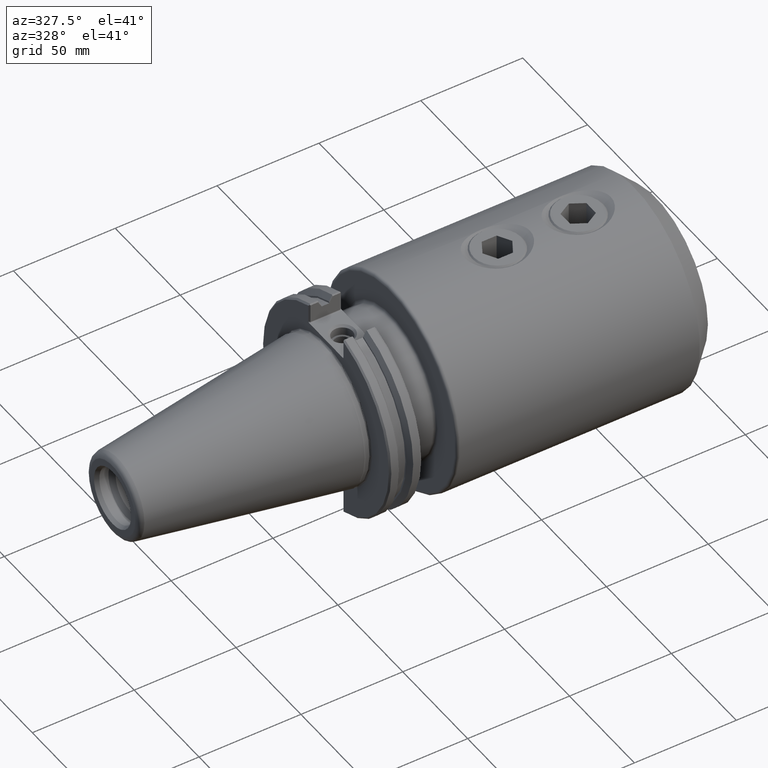
[diagram: clean part render]
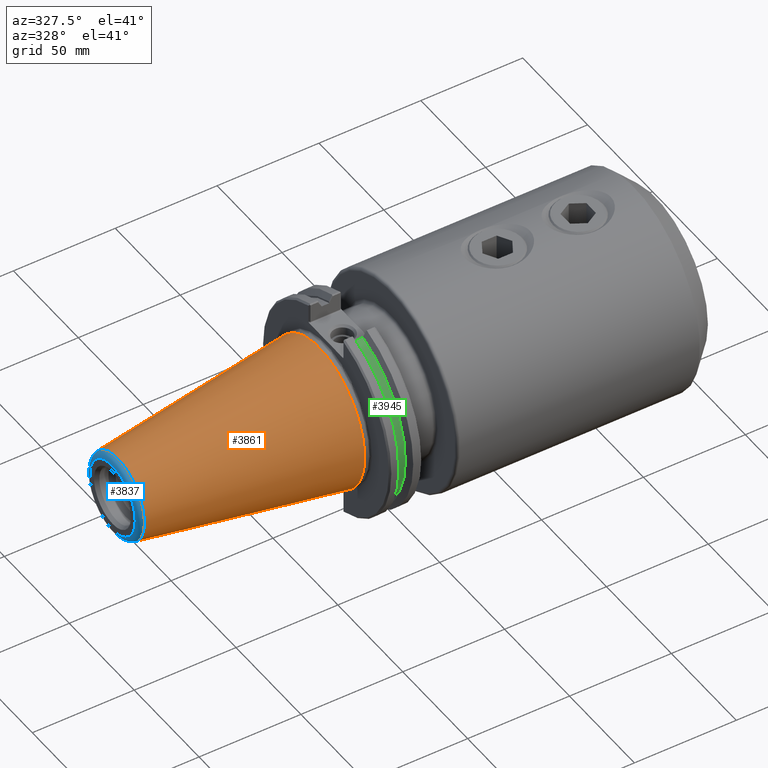
[diagram: same view with three faces highlighted in distinct colors, each labeled with its STEP entity id]
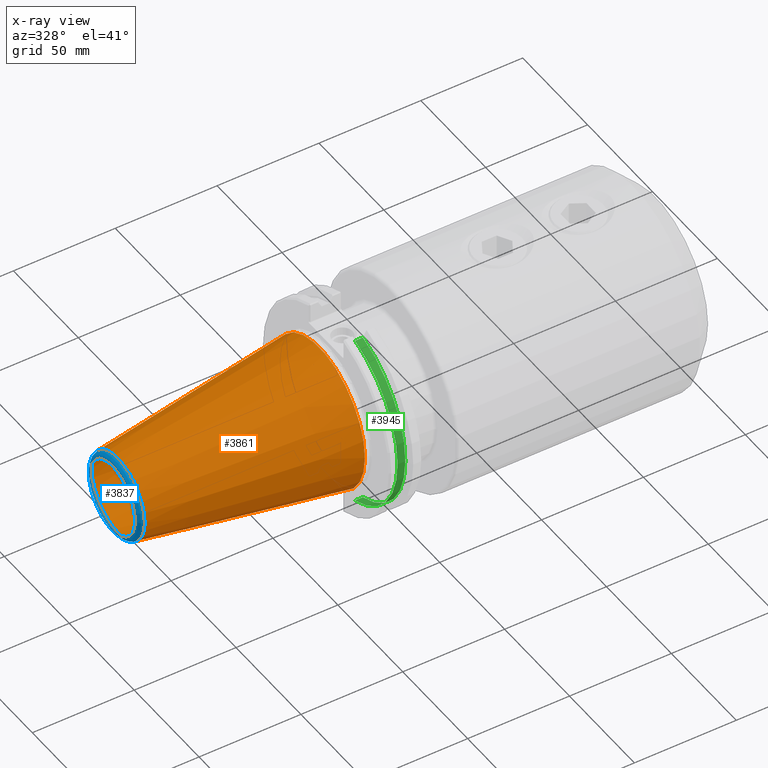
[diagram: x-ray of the same camera — body ghosted, the three highlighted faces saturated]
A machine part, auxiliary view with three faces highlighted in distinct colors.
The next image is the same camera in x-ray (body ghosted, the three faces saturated) — at least one of them is partly hidden behind the body in this view.
Their STEP definitions:

[orange] entity #3861 — the highlighted conical surface has half-angle 8.297 deg.
#3718=CARTESIAN_POINT('',(0.0,1.375,0.0));
#3719=VERTEX_POINT('',#3718);
#3720=CARTESIAN_POINT('',(0.0,0.0,0.0));
#3721=DIRECTION('',(1.0,1.033781E-013,0.0));
#3722=DIRECTION('',(-1.033781E-013,1.0,0.0));
#3723=AXIS2_PLACEMENT_3D('',#3720,#3721,#3722);
#3724=CIRCLE('',#3723,1.375);
#3725=EDGE_CURVE('',#3719,#3719,#3724,.T.);
#3826=CARTESIAN_POINT('',(-3.897316526722477,0.806651410560644,-1.975661E-016));
#3827=VERTEX_POINT('',#3826);
#3828=CARTESIAN_POINT('',(-3.897316526722475,1.188900E-014,-9.878304E-017));
#3829=DIRECTION('',(-1.0,0.0,0.0));
#3830=DIRECTION('',(0.0,-1.0,0.0));
#3831=AXIS2_PLACEMENT_3D('',#3828,#3829,#3830);
#3832=CIRCLE('',#3831,0.806651410560633);
#3833=EDGE_CURVE('',#3827,#3827,#3832,.T.);
#3850=CARTESIAN_POINT('',(-2.0,0.0,0.0));
#3851=DIRECTION('',(1.0,0.0,0.0));
#3852=DIRECTION('',(-1.033781E-013,1.0,0.0));
#3853=AXIS2_PLACEMENT_3D('',#3850,#3851,#3852);
#3854=CONICAL_SURFACE('',#3853,1.083338501354761,8.29699999999999);
#3855=ORIENTED_EDGE('',*,*,#3725,.F.);
#3856=EDGE_LOOP('',(#3855));
#3857=FACE_OUTER_BOUND('',#3856,.T.);
#3858=ORIENTED_EDGE('',*,*,#3833,.F.);
#3859=EDGE_LOOP('',(#3858));
#3860=FACE_BOUND('',#3859,.T.);
#3861=ADVANCED_FACE('',(#3857,#3860),#3854,.T.);

[blue] entity #3837 — the highlighted toroidal blend (fillet) surface has major radius 17.4728 mm and minor (blend) radius 3.048 mm.
#3810=CARTESIAN_POINT('',(-3.88,0.0,0.0));
#3811=DIRECTION('',(1.0,0.0,0.0));
#3812=DIRECTION('',(0.0,0.0,-1.0));
#3813=AXIS2_PLACEMENT_3D('',#3810,#3811,#3812);
#3814=TOROIDAL_SURFACE('',#3813,0.687907409018366,0.12);
#3815=CARTESIAN_POINT('',(-4.0,0.687907409018366,0.0));
#3816=VERTEX_POINT('',#3815);
#3817=CARTESIAN_POINT('',(-4.0,0.0,0.0));
#3818=DIRECTION('',(1.0,0.0,0.0));
#3819=DIRECTION('',(0.0,-1.0,0.0));
#3820=AXIS2_PLACEMENT_3D('',#3817,#3818,#3819);
#3821=CIRCLE('',#3820,0.687907409018366);
#3822=EDGE_CURVE('',#3816,#3816,#3821,.T.);
#3823=ORIENTED_EDGE('',*,*,#3822,.T.);
#3824=EDGE_LOOP('',(#3823));
#3825=FACE_OUTER_BOUND('',#3824,.T.);
#3826=CARTESIAN_POINT('',(-3.897316526722477,0.806651410560644,-1.975661E-016));
#3827=VERTEX_POINT('',#3826);
#3828=CARTESIAN_POINT('',(-3.897316526722475,1.188900E-014,-9.878304E-017));
#3829=DIRECTION('',(-1.0,0.0,0.0));
#3830=DIRECTION('',(0.0,-1.0,0.0));
#3831=AXIS2_PLACEMENT_3D('',#3828,#3829,#3830);
#3832=CIRCLE('',#3831,0.806651410560633);
#3833=EDGE_CURVE('',#3827,#3827,#3832,.T.);
#3834=ORIENTED_EDGE('',*,*,#3833,.T.);
#3835=EDGE_LOOP('',(#3834));
#3836=FACE_BOUND('',#3835,.T.);
#3837=ADVANCED_FACE('',(#3825,#3836),#3814,.T.);

[green] entity #3945 — the highlighted cylindrical surface (partial cylindrical patch) has radius 45.6438 mm, axis along (-1, -0, 0).
#858=CARTESIAN_POINT('',(0.362850000000034,-0.507499999999756,-1.723848238679705));
#859=VERTEX_POINT('',#858);
#866=CARTESIAN_POINT('',(0.362850000000034,-0.507499999999821,1.723848238679686));
#867=VERTEX_POINT('',#866);
#868=CARTESIAN_POINT('',(0.362849999999981,2.442670E-013,0.0));
#869=DIRECTION('',(-1.0,-1.033610E-013,0.0));
#870=DIRECTION('',(-1.033610E-013,1.0,0.0));
#871=AXIS2_PLACEMENT_3D('',#868,#869,#870);
#872=CIRCLE('',#871,1.796999999999756);
#873=EDGE_CURVE('',#859,#867,#872,.T.);
#973=CARTESIAN_POINT('',(0.513850000000034,-0.50749999999974,-1.723848238679689));
#974=VERTEX_POINT('',#973);
#981=CARTESIAN_POINT('',(0.362850000000034,-0.507499999999756,-1.723848238679697));
#982=DIRECTION('',(1.0,1.029346E-013,0.0));
#983=VECTOR('',#982,0.151);
#984=LINE('',#981,#983);
#985=EDGE_CURVE('',#859,#974,#984,.T.);
#1137=CARTESIAN_POINT('',(0.513850000000034,-0.507499999999821,1.723848238679665));
#1138=VERTEX_POINT('',#1137);
#1145=CARTESIAN_POINT('',(0.513849999999981,2.598771E-013,0.0));
#1146=DIRECTION('',(-1.0,-1.033610E-013,0.0));
#1147=DIRECTION('',(-1.033610E-013,1.0,0.0));
#1148=AXIS2_PLACEMENT_3D('',#1145,#1146,#1147);
#1149=CIRCLE('',#1148,1.79699999999974);
#1150=EDGE_CURVE('',#974,#1138,#1149,.T.);
#2266=CARTESIAN_POINT('',(0.513850000000034,-0.507499999999813,1.723848238679676));
#2267=DIRECTION('',(-1.0,-1.029346E-013,0.0));
#2268=VECTOR('',#2267,0.151);
#2269=LINE('',#2266,#2268);
#2270=EDGE_CURVE('',#1138,#867,#2269,.T.);
#3934=CARTESIAN_POINT('',(0.438349999999981,2.520721E-013,0.0));
#3935=DIRECTION('',(-1.0,-1.033781E-013,0.0));
#3936=DIRECTION('',(-1.033610E-013,1.0,0.0));
#3937=AXIS2_PLACEMENT_3D('',#3934,#3935,#3936);
#3938=CYLINDRICAL_SURFACE('',#3937,1.796999999999748);
#3939=ORIENTED_EDGE('',*,*,#985,.T.);
#3940=ORIENTED_EDGE('',*,*,#1150,.T.);
#3941=ORIENTED_EDGE('',*,*,#2270,.T.);
#3942=ORIENTED_EDGE('',*,*,#873,.F.);
#3943=EDGE_LOOP('',(#3939,#3940,#3941,#3942));
#3944=FACE_OUTER_BOUND('',#3943,.T.);
#3945=ADVANCED_FACE('',(#3944),#3938,.T.);